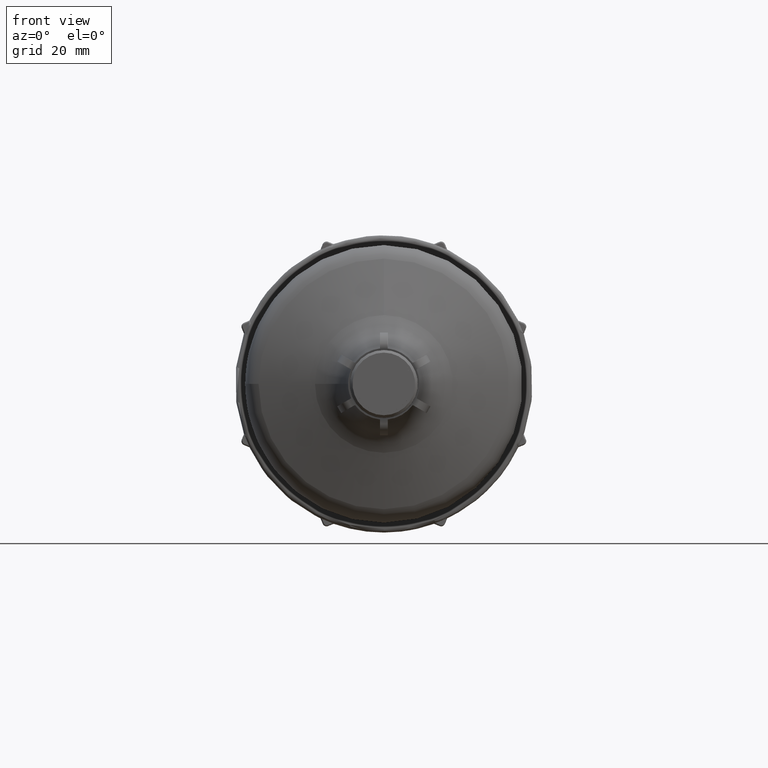
[diagram: clean part render]
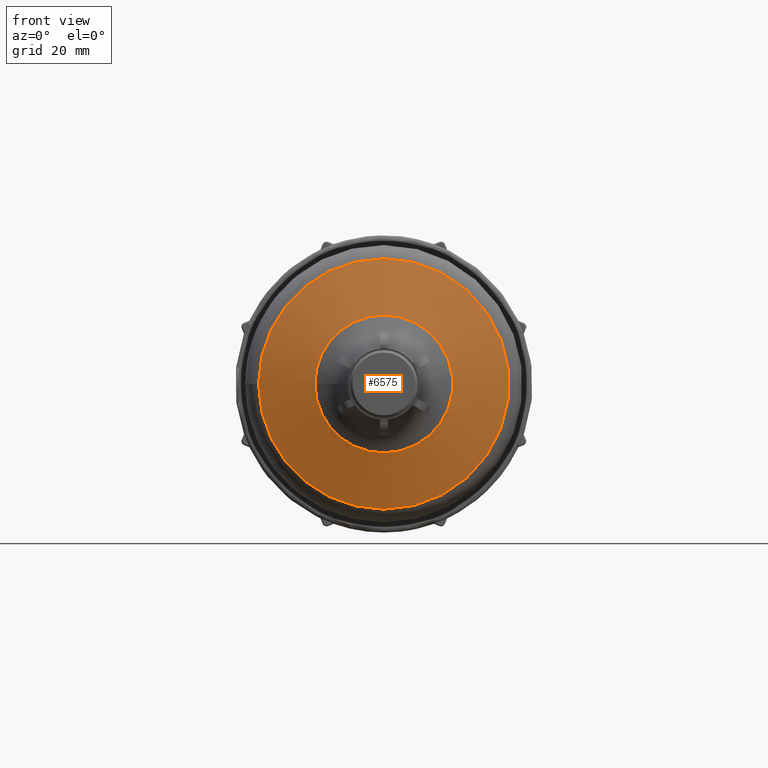
[diagram: same view with one face highlighted and labeled with its STEP entity id]
A machine part, front view. The second image highlights one B-rep face of the part: STEP entity #6575.
In plain terms, the highlighted conical surface has half-angle 70 deg.
Its self-contained STEP definition (entity closure, byte-faithful):
#147=CONICAL_SURFACE('',#7222,18.848939570023,1.22173047639603);
#496=LINE('',#14167,#800);
#800=VECTOR('',#8786,18.848939570023);
#1807=FACE_OUTER_BOUND('',#2190,.T.);
#2190=EDGE_LOOP('',(#5993,#5994,#5995,#5996,#5997,#5998,#5999,#6000));
#2560=CIRCLE('',#7203,13.3797985667433);
#2561=CIRCLE('',#7204,13.3797985667433);
#2562=CIRCLE('',#7205,13.3797985667433);
#2573=CIRCLE('',#7223,24.3180805733027);
#2574=CIRCLE('',#7224,24.3180805733027);
#2575=CIRCLE('',#7225,24.3180805733027);
#3180=VERTEX_POINT('',#14091);
#3181=VERTEX_POINT('',#14093);
#3182=VERTEX_POINT('',#14095);
#3193=VERTEX_POINT('',#14162);
#3194=VERTEX_POINT('',#14163);
#3195=VERTEX_POINT('',#14165);
#4111=EDGE_CURVE('',#3181,#3180,#2560,.T.);
#4112=EDGE_CURVE('',#3182,#3181,#2561,.T.);
#4113=EDGE_CURVE('',#3180,#3182,#2562,.T.);
#4134=EDGE_CURVE('',#3193,#3194,#2573,.T.);
#4135=EDGE_CURVE('',#3195,#3193,#2574,.T.);
#4136=EDGE_CURVE('',#3195,#3182,#496,.T.);
#4137=EDGE_CURVE('',#3194,#3195,#2575,.T.);
#5993=ORIENTED_EDGE('',*,*,#4134,.F.);
#5994=ORIENTED_EDGE('',*,*,#4135,.F.);
#5995=ORIENTED_EDGE('',*,*,#4136,.T.);
#5996=ORIENTED_EDGE('',*,*,#4112,.T.);
#5997=ORIENTED_EDGE('',*,*,#4111,.T.);
#5998=ORIENTED_EDGE('',*,*,#4113,.T.);
#5999=ORIENTED_EDGE('',*,*,#4136,.F.);
#6000=ORIENTED_EDGE('',*,*,#4137,.F.);
#6575=ADVANCED_FACE('',(#1807),#147,.T.);
#7203=AXIS2_PLACEMENT_3D('',#14094,#8735,#8736);
#7204=AXIS2_PLACEMENT_3D('',#14096,#8737,#8738);
#7205=AXIS2_PLACEMENT_3D('',#14097,#8739,#8740);
#7222=AXIS2_PLACEMENT_3D('',#14161,#8780,#8781);
#7223=AXIS2_PLACEMENT_3D('',#14164,#8782,#8783);
#7224=AXIS2_PLACEMENT_3D('',#14166,#8784,#8785);
#7225=AXIS2_PLACEMENT_3D('',#14168,#8787,#8788);
#8735=DIRECTION('center_axis',(-3.67702306362359E-17,1.,2.31725584917124E-17));
#8736=DIRECTION('ref_axis',(1.63311561366286E-33,6.44865175496804E-32,-1.));
#8737=DIRECTION('center_axis',(-3.67702306362359E-17,1.,2.31725584917124E-17));
#8738=DIRECTION('ref_axis',(1.63311561366286E-33,6.44865175496804E-32,-1.));
#8739=DIRECTION('center_axis',(-3.67702306362359E-17,1.,2.31725584917124E-17));
#8740=DIRECTION('ref_axis',(1.63311561366286E-33,6.44865175496804E-32,-1.));
#8780=DIRECTION('center_axis',(-3.67702306362359E-17,1.,2.31725584917124E-17));
#8781=DIRECTION('ref_axis',(1.63311561366286E-33,6.53933426773846E-32,-1.));
#8782=DIRECTION('center_axis',(-3.67702306362359E-17,1.,2.31725584917124E-17));
#8783=DIRECTION('ref_axis',(1.63311561366286E-33,6.58922775134368E-32,-1.));
#8784=DIRECTION('center_axis',(-3.67702306362359E-17,1.,2.31725584917124E-17));
#8785=DIRECTION('ref_axis',(1.63311561366286E-33,6.58922775134368E-32,-1.));
#8786=DIRECTION('',(-1.02502996470462E-16,-0.342020143325669,-0.939692620785908));
#8787=DIRECTION('center_axis',(-3.67702306362359E-17,1.,2.31725584917124E-17));
#8788=DIRECTION('ref_axis',(1.63311561366286E-33,6.58922775134368E-32,-1.));
#14091=CARTESIAN_POINT('',(-13.3797985667433,-77.3030737921409,-4.48207371007024E-16));
#14093=CARTESIAN_POINT('',(2.84245185222698E-15,-77.3030737921409,-13.3797985667433));
#14094=CARTESIAN_POINT('Origin',(2.84245185222698E-15,-77.3030737921409,
-2.08676011980688E-15));
#14095=CARTESIAN_POINT('',(4.48100460102683E-15,-77.3030737921409,13.3797985667433));
#14096=CARTESIAN_POINT('Origin',(2.84245185222698E-15,-77.3030737921409,
-2.08676011980688E-15));
#14097=CARTESIAN_POINT('Origin',(2.84245185222698E-15,-77.3030737921409,
-2.08676011980688E-15));
#14161=CARTESIAN_POINT('Origin',(2.7692568644725E-15,-75.3124692599423,
-2.04063271985064E-15));
#14162=CARTESIAN_POINT('',(2.69606187671802E-15,-73.3218647277437,-24.3180805733027));
#14163=CARTESIAN_POINT('',(-24.3180805733027,-73.3218647277437,9.83600633655866E-16));
#14164=CARTESIAN_POINT('Origin',(2.69606187671802E-15,-73.3218647277437,
-1.9945053198944E-15));
#14165=CARTESIAN_POINT('',(5.67416783026828E-15,-73.3218647277437,24.3180805733027));
#14166=CARTESIAN_POINT('Origin',(2.69606187671802E-15,-73.3218647277437,
-1.9945053198944E-15));
#14167=CARTESIAN_POINT('',(5.07758621564756E-15,-75.3124692599423,18.848939570023));
#14168=CARTESIAN_POINT('Origin',(2.69606187671802E-15,-73.3218647277437,
-1.9945053198944E-15));